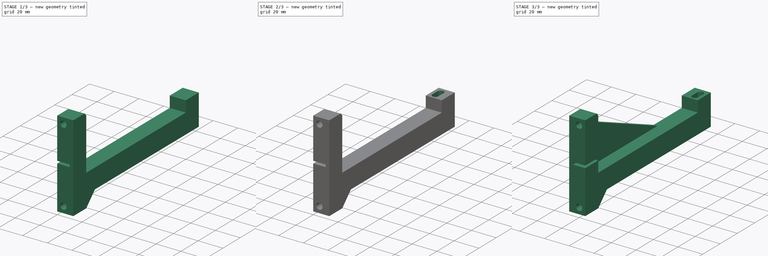
[diagram: build sequence overview — one tinted view per stage of 3, left to right]
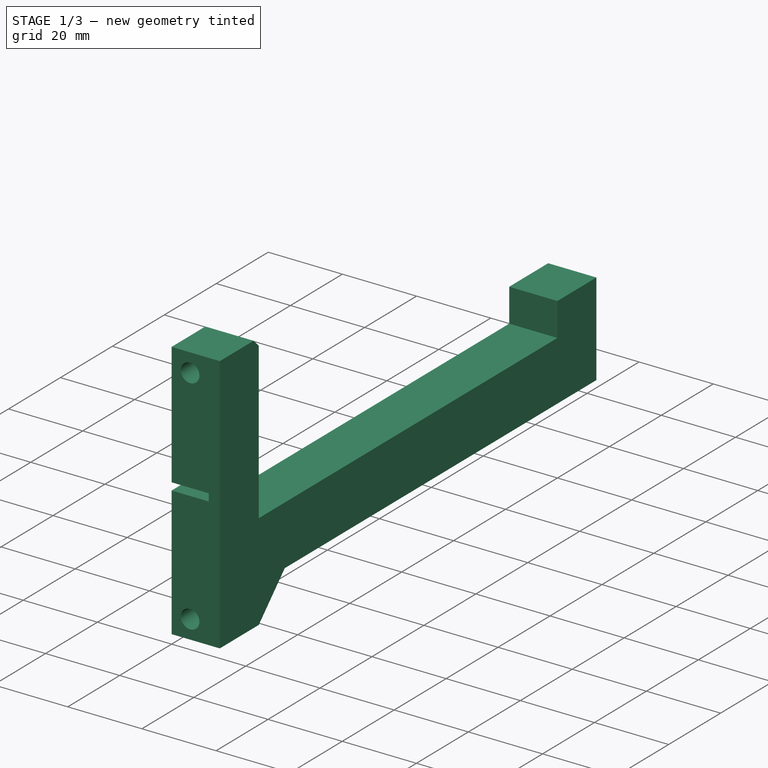
[diagram: stage 1 of 3 — iso view after this stage's code; geometry added in this stage tinted green]
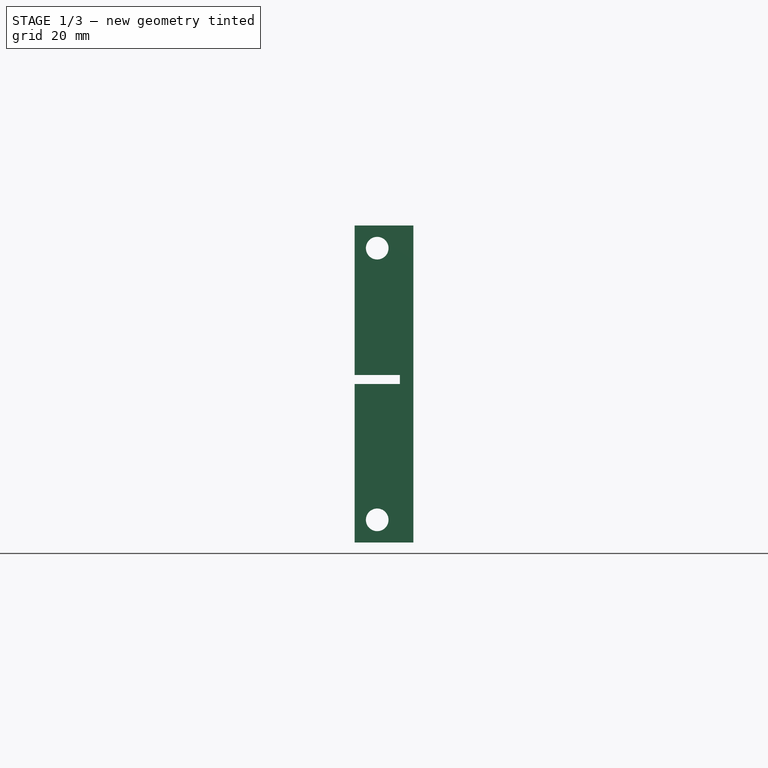
[diagram: stage 1 of 3 — front view after this stage's code; geometry added in this stage tinted green]
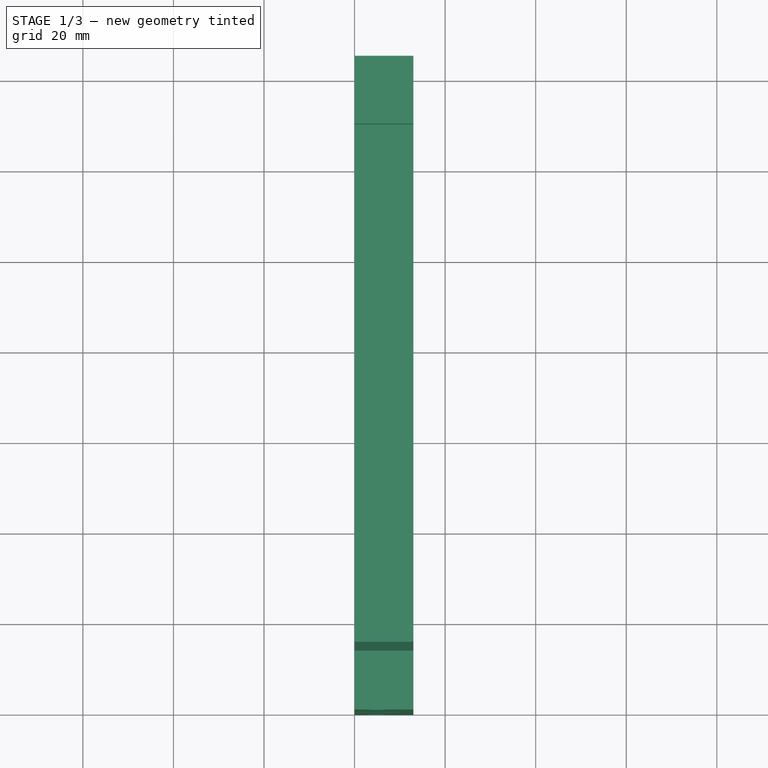
[diagram: stage 1 of 3 — top view after this stage's code; geometry added in this stage tinted green]
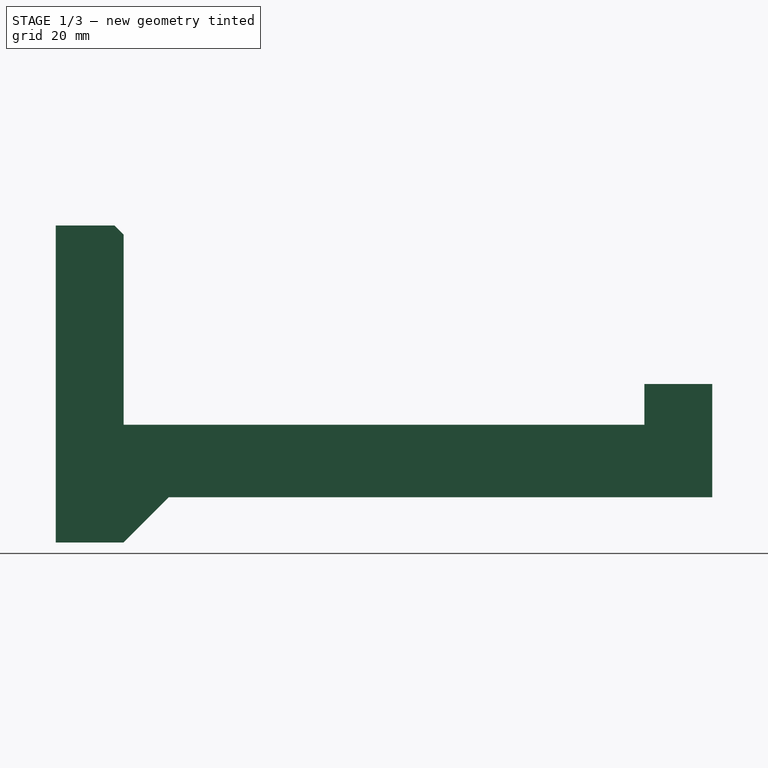
[diagram: stage 1 of 3 — right view after this stage's code; geometry added in this stage tinted green]
FCSTD DOCUMENT  (FreeCAD 0.19R24291 (Git))
Label: ControllerSupportRT
License: All rights reserved
LicenseURL: http://en.wikipedia.org/wiki/All_rights_reserved
objects: Sketcher::SketchObject×6, PartDesign::Pocket×4, PartDesign::Pad×2, PartDesign::Body×2, App::Part×1, PartDesign::FeatureBase×1, Part::Mirroring×1
note: 22 computed .brp shape members not serialized (recipe doc carries the construction recipe); baked Part::Feature solids carry a one-line shape summary decoded from their .brp

FEATURE [Sketcher::SketchObject] Sketch  label="SketchSide"
  FullyConstrained = true
  MapMode = 5
  Placement = pos=(0,0,0) rot=(0.57735,0.57735,0.57735;2.0944rad)
  Support = -> [YZ_Plane001]
  sketch-geometry (12):
    g0: LineSegment StartX=0 StartY=35 StartZ=0 EndX=0 EndY=-35 EndZ=0
    g1: LineSegment StartX=0 StartY=-35 StartZ=0 EndX=15 EndY=-35 EndZ=0
    g2: LineSegment StartX=15 StartY=-35 StartZ=0 EndX=25 EndY=-25 EndZ=0
    g3: LineSegment StartX=25 StartY=-25 StartZ=0 EndX=145 EndY=-25 EndZ=0
    g4: LineSegment StartX=145 StartY=-25 StartZ=0 EndX=145 EndY=0 EndZ=0
    g5: LineSegment StartX=145 StartY=0 StartZ=0 EndX=130 EndY=0 EndZ=0
    g6: LineSegment StartX=130 StartY=0 StartZ=0 EndX=130 EndY=-9 EndZ=0
    g7: LineSegment StartX=130 StartY=-9 StartZ=0 EndX=15 EndY=-9 EndZ=0
    g8: LineSegment StartX=15 StartY=-9 StartZ=0 EndX=15 EndY=0 EndZ=0
    g9: LineSegment StartX=15 StartY=0 StartZ=0 EndX=15 EndY=33 EndZ=0
    g10: LineSegment StartX=0 StartY=35 StartZ=0 EndX=13 EndY=35 EndZ=0
    g11: LineSegment StartX=13 StartY=35 StartZ=0 EndX=15 EndY=33 EndZ=0
  constraints (35):
    c: PointOnObject(g0,g-2)
    c: Coincident(g0,g1)
    c: Horizontal(g1)
    c: Coincident(g1,g2)
    c: Coincident(g2,g3)
    c: Horizontal(g3)
    c: Coincident(g3,g4)
    c: Vertical(g4)
    c: Coincident(g4,g5)
    c: PointOnObject(g5,g-1)
    c: Horizontal(g5)
    c: Coincident(g5,g6)
    c: Vertical(g6)
    c: Coincident(g6,g7)
    c: Horizontal(g7)
    c: Coincident(g7,g8)
    c: PointOnObject(g8,g-1)
    c: Vertical(g8)
    c: Coincident(g8,g9)
    c: Vertical(g9)
    c: Symmetric(g0,g0,g-1)
    c: DistanceY(g0,g0) = 70
    c: DistanceX(g1,g1) = 15
    c: DistanceY(g8,g8) = 9
    c: DistanceX(g-1,g6) = 130
    c: DistanceX(g-1,g3) = 145
    c: Vertical(g9,g1)
    c: Angle(g2) = 0.785398
    c: DistanceY(g2,g-1) = 25
    c: Coincident(g0,g10)
    c: Horizontal(g10)
    c: Coincident(g10,g11)
    c: Angle(g11) = -0.785398
    c: Coincident(g9,g11)
    c: DistanceY(g-1,g9) = 33
FEATURE [PartDesign::Pad] Pad  label="PadBody"
  Direction = (1,1,1)
  Length = 13
  Length2 = 100
  Placement = pos=(0,0,0) rot=(0.57735,0.57735,0.57735;2.0944rad)
  Profile = -> Sketch
  Type = 0
FEATURE [Sketcher::SketchObject] Sketch001
  FullyConstrained = true
  MapMode = 5
  Placement = pos=(0,0,0) rot=(1,0,0;1.5708rad)
  Support = -> [XZ_Plane001]
  sketch-geometry (4):
    g0: LineSegment StartX=0 StartY=0 StartZ=0 EndX=10 EndY=0 EndZ=0
    g1: LineSegment StartX=10 StartY=0 StartZ=0 EndX=10 EndY=2 EndZ=0
    g2: LineSegment StartX=10 StartY=2 StartZ=0 EndX=0 EndY=2 EndZ=0
    g3: LineSegment StartX=0 StartY=2 StartZ=0 EndX=0 EndY=0 EndZ=0
  constraints (11):
    c: Coincident(g0,g1)
    c: Coincident(g1,g2)
    c: Coincident(g2,g3)
    c: Coincident(g3,g0)
    c: Horizontal(g0)
    c: Horizontal(g2)
    c: Vertical(g1)
    c: Vertical(g3)
    c: Coincident(g0,g-1)
    c: DistanceX(g2,g2) = 10
    c: DistanceY(g1,g1) = 2
FEATURE [PartDesign::Pocket] Pocket  label="PocketPCBSlot"
  BaseFeature = -> Pad
  Length = 5
  Length2 = 100
  Placement = pos=(0,0,0) rot=(0.57735,0.57735,0.57735;2.0944rad)
  Profile = -> Sketch001
  Type = 1
FEATURE [Sketcher::SketchObject] Sketch002
  FullyConstrained = true
  MapMode = 5
  Placement = pos=(0,0,0) rot=(1,0,0;1.5708rad)
  Support = -> [XZ_Plane001]
  sketch-geometry (2):
    g0: Circle CenterX=5 CenterY=30 CenterZ=0 NormalX=0 NormalY=0 NormalZ=1 AngleXU=0 Radius=2.5
    g1: Circle CenterX=5 CenterY=-30 CenterZ=0 NormalX=0 NormalY=0 NormalZ=1 AngleXU=0 Radius=2.5
  constraints (5):
    c: DistanceX(g-1,g0) = 5
    c: Diameter(g0) = 5
    c: Equal(g0,g1)
    c: Symmetric(g1,g0,g-1)
    c: DistanceY(g1,g0) = 60
FEATURE [PartDesign::Pocket] Pocket001  label="PocketFaceHoles"
  BaseFeature = -> Pocket
  Length = 5
  Length2 = 100
  Placement = pos=(0,0,0) rot=(0.57735,0.57735,0.57735;2.0944rad)
  Profile = -> Sketch002
  Type = 1
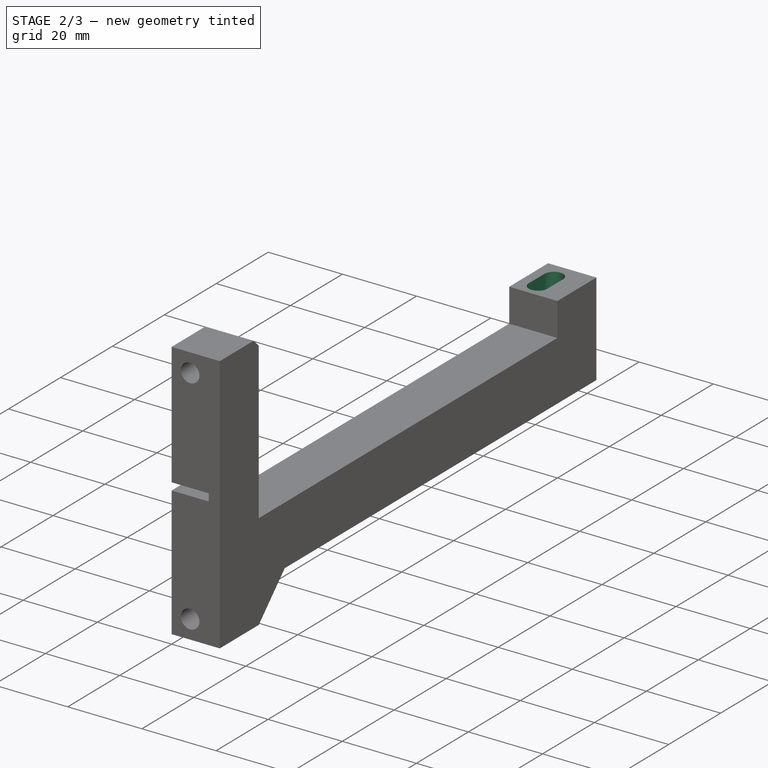
[diagram: stage 2 of 3 — iso view after this stage's code; geometry added in this stage tinted green]
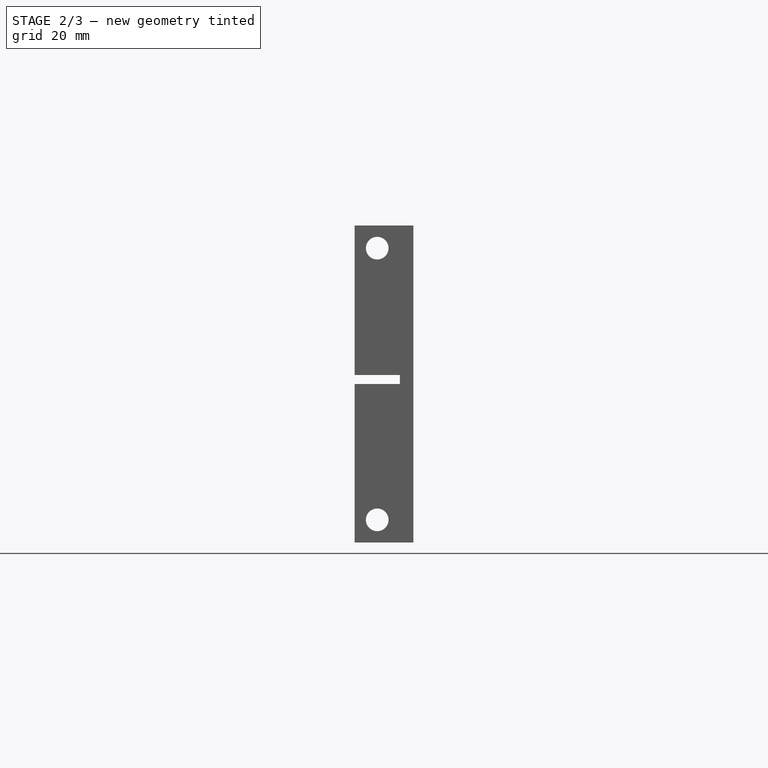
[diagram: stage 2 of 3 — front view after this stage's code; geometry added in this stage tinted green]
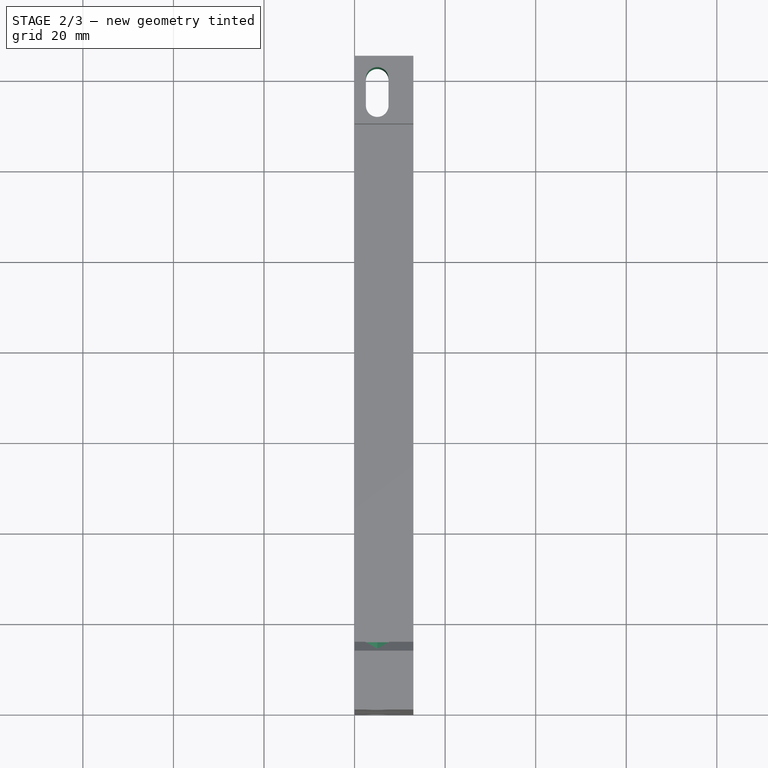
[diagram: stage 2 of 3 — top view after this stage's code; geometry added in this stage tinted green]
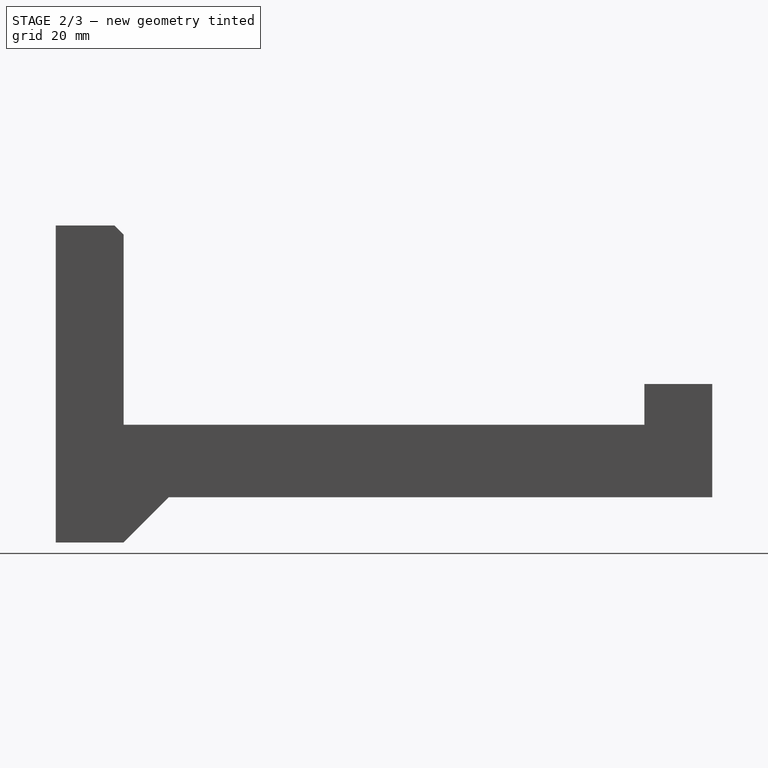
[diagram: stage 2 of 3 — right view after this stage's code; geometry added in this stage tinted green]
FEATURE [Sketcher::SketchObject] Sketch003
  AttachmentOffset = pos=(0,0,-12) rot=(0,0,1;0rad)
  FullyConstrained = true
  MapMode = 5
  Placement = pos=(4e-15,12,-1.3e-15) rot=(-0.57735,-0.57735,0.57735;4.18879rad)
  Support = -> [Pocket001]
  sketch-geometry (14):
    g0: LineSegment StartX=-27.7195 StartY=8.95 StartZ=0 EndX=-32.2805 EndY=8.95 EndZ=0
    g1: LineSegment StartX=-32.2805 StartY=8.95 StartZ=0 EndX=-34.5611 EndY=5 EndZ=0
    g2: LineSegment StartX=-34.5611 StartY=5 StartZ=0 EndX=-32.2805 EndY=1.05 EndZ=0
    g3: LineSegment StartX=-32.2805 StartY=1.05 StartZ=0 EndX=-27.7195 EndY=1.05 EndZ=0
    g4: LineSegment StartX=-27.7195 StartY=1.05 StartZ=0 EndX=-25.4389 EndY=5 EndZ=0
    g5: LineSegment StartX=-25.4389 StartY=5 StartZ=0 EndX=-27.7195 EndY=8.95 EndZ=0
    g6: Circle CenterX=-30 CenterY=5 CenterZ=0 NormalX=0 NormalY=0 NormalZ=1 AngleXU=0 Radius=4.56107
    g7: LineSegment StartX=32.2805 StartY=8.95 StartZ=0 EndX=27.7195 EndY=8.95 EndZ=0
    g8: LineSegment StartX=27.7195 StartY=8.95 StartZ=0 EndX=25.4389 EndY=5 EndZ=0
    g9: LineSegment StartX=25.4389 StartY=5 StartZ=0 EndX=27.7195 EndY=1.05 EndZ=0
    g10: LineSegment StartX=27.7195 StartY=1.05 StartZ=0 EndX=32.2805 EndY=1.05 EndZ=0
    g11: LineSegment StartX=32.2805 StartY=1.05 StartZ=0 EndX=34.5611 EndY=5 EndZ=0
    g12: LineSegment StartX=34.5611 StartY=5 StartZ=0 EndX=32.2805 EndY=8.95 EndZ=0
    g13: Circle CenterX=30 CenterY=5 CenterZ=0 NormalX=0 NormalY=0 NormalZ=1 AngleXU=0 Radius=4.56107
  constraints (33):
    c: Coincident(g0,g1)
    c: Coincident(g1,g2)
    c: Coincident(g2,g3)
    c: Coincident(g3,g4)
    c: Coincident(g4,g5)
    c: Coincident(g5,g0)
    c: Equal(g0, g1-g5) x5
    c: PointOnObject(g0,g6)
    c: PointOnObject(g1,g6)
    c: PointOnObject(g2,g6)
    c: PointOnObject(g3,g6)
    c: PointOnObject(g4,g6)
    c: PointOnObject(g5,g6)
    c: Coincident(g7,g8)
    c: Coincident(g8,g9)
    c: Coincident(g9,g10)
    c: Coincident(g10,g11)
    c: Coincident(g11,g12)
    c: Coincident(g12,g7)
    c: Equal(g7, g8-g12) x5
    c: PointOnObject(g7,g13)
    c: PointOnObject(g8,g13)
    c: PointOnObject(g9,g13)
    c: PointOnObject(g10,g13)
    c: PointOnObject(g11,g13)
    c: PointOnObject(g12,g13)
    c: Equal(g6,g13)
    c: Symmetric(g6,g13,g-2)
    c: Horizontal(g3)
    c: Horizontal(g10)
    c: Distance(g1,g0) = 7.9
    c: DistanceX(g6,g13) = 60
    c: DistanceY(g-1,g6) = 5
FEATURE [PartDesign::Pocket] Pocket002  label="PocketHex5mm"
  BaseFeature = -> Pocket001
  Length = 0
  Length2 = 12
  Offset = 10
  Placement = pos=(0,0,0) rot=(0.57735,0.57735,0.57735;2.0944rad)
  Profile = -> Sketch003
  Type = 2
FEATURE [Sketcher::SketchObject] Sketch004
  FullyConstrained = true
  MapMode = 5
  Placement = pos=(0,0,2.36e-14) rot=(0,0,-1;1.5708rad)
  Support = -> [Pocket002]
  sketch-geometry (5):
    g0: ArcOfCircle CenterX=-140 CenterY=5 CenterZ=0 NormalX=0 NormalY=0 NormalZ=1 AngleXU=0 Radius=2.5 StartAngle=1.5708 EndAngle=4.71239
    g1: ArcOfCircle CenterX=-134 CenterY=5 CenterZ=0 NormalX=0 NormalY=0 NormalZ=1 AngleXU=0 Radius=2.5 StartAngle=4.71239 EndAngle=7.85398
    g2: LineSegment StartX=-140 StartY=2.5 StartZ=0 EndX=-134 EndY=2.5 EndZ=0
    g3: LineSegment StartX=-140 StartY=7.5 StartZ=0 EndX=-134 EndY=7.5 EndZ=0
    g4: GeomPoint X=-137 Y=5 Z=0
  constraints (11):
    c: Tangent(g0,g3) = 1.5708
    c: Tangent(g0,g2) = -1.5708
    c: Tangent(g2,g1) = -1.5708
    c: Tangent(g3,g1) = 1.5708
    c: Horizontal(g2)
    c: Equal(g0,g1)
    c: DistanceY(g0,g0) = 5
    c: DistanceY(g-1,g1) = 5
    c: DistanceX(g0,g1) = 6
    c: Symmetric(g0,g1,g4)
    c: DistanceX(g4,g-1) = 137
FEATURE [PartDesign::Pocket] Pocket003  label="PocketFarHole"
  BaseFeature = -> Pocket002
  Length = 5
  Length2 = 100
  Placement = pos=(0,0,0) rot=(0.57735,0.57735,0.57735;2.0944rad)
  Profile = -> Sketch004
  Refine = true
  Type = 1
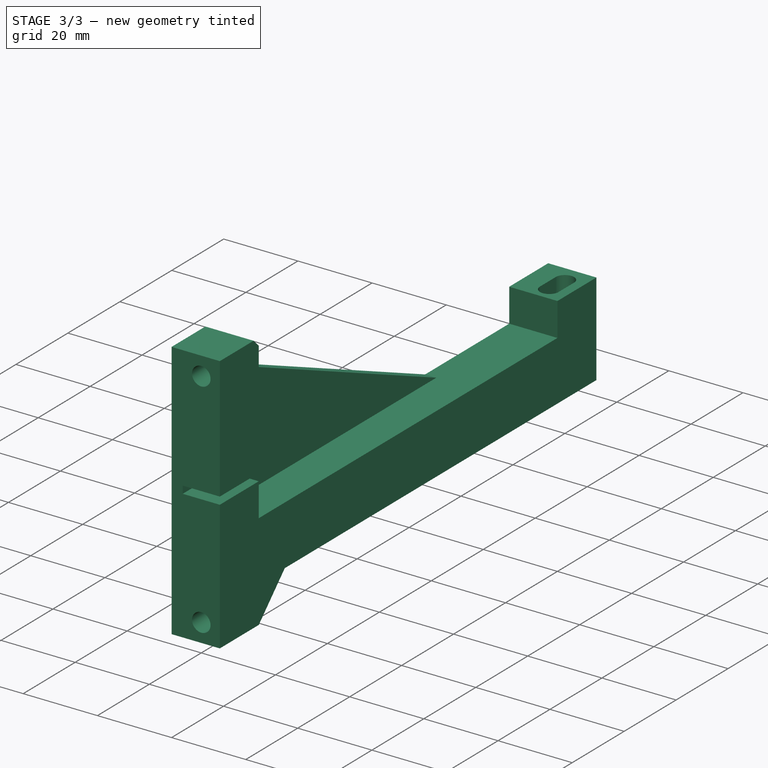
[diagram: stage 3 of 3 — iso view after this stage's code; geometry added in this stage tinted green]
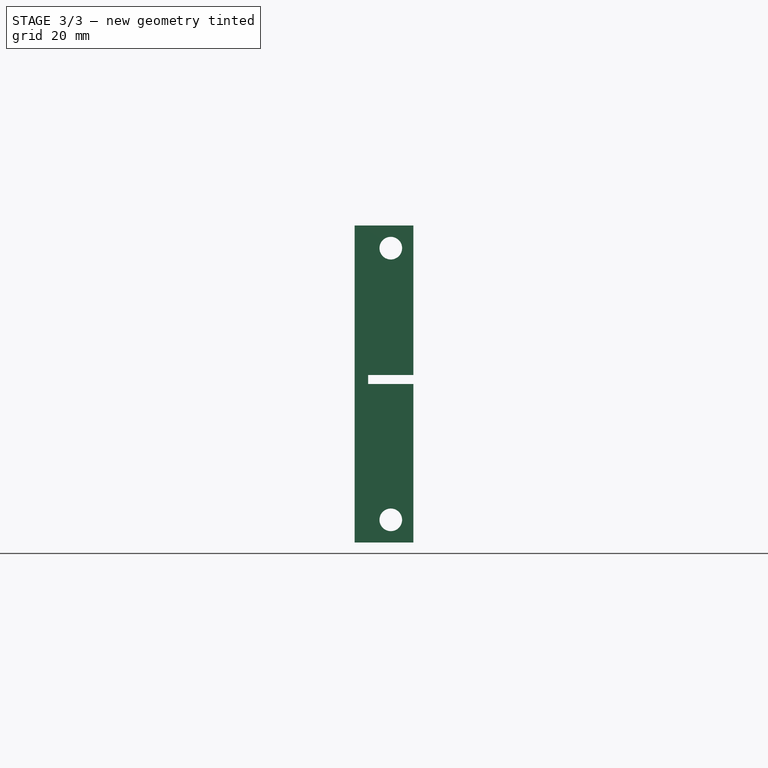
[diagram: stage 3 of 3 — front view after this stage's code; geometry added in this stage tinted green]
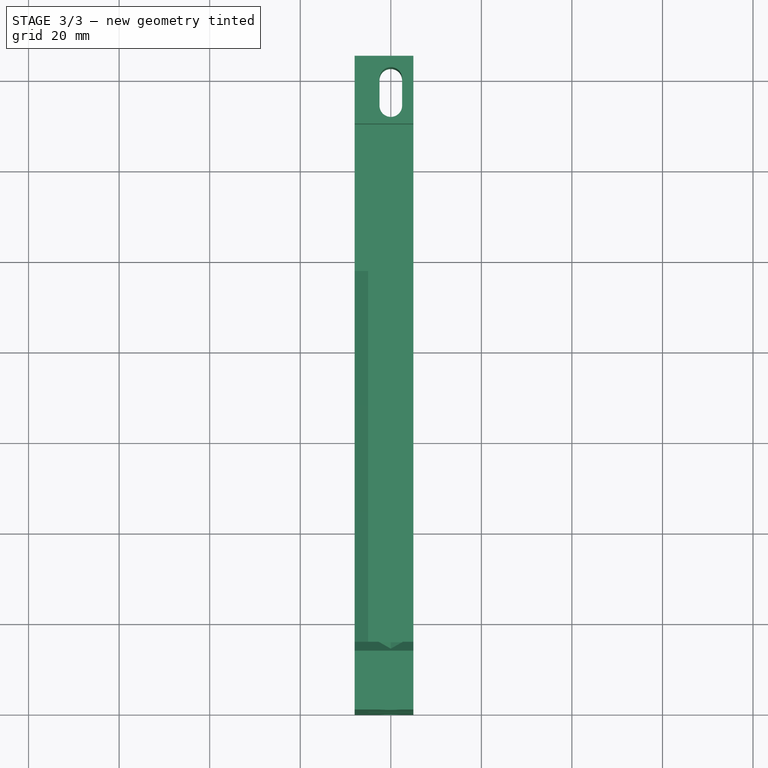
[diagram: stage 3 of 3 — top view after this stage's code; geometry added in this stage tinted green]
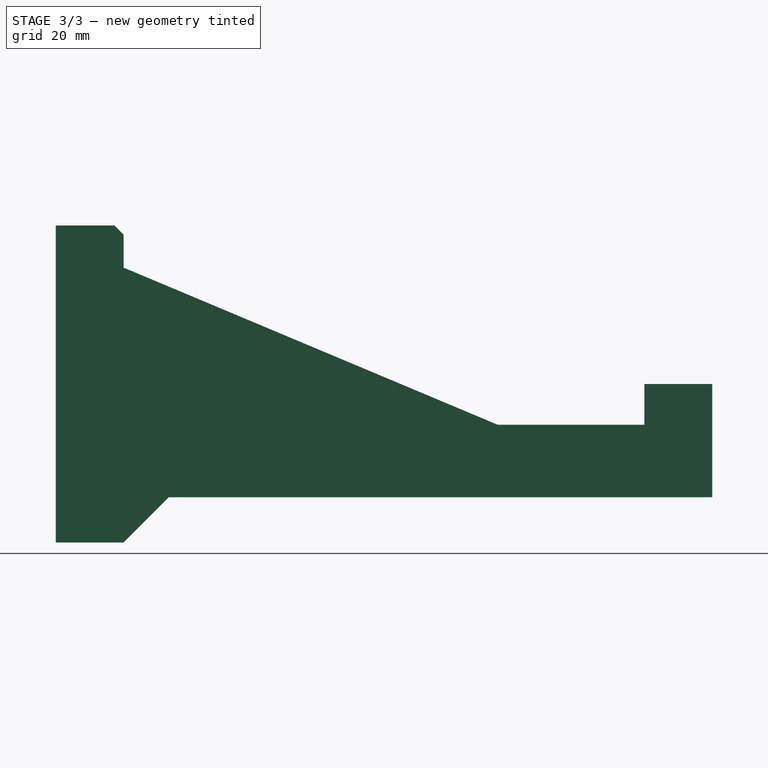
[diagram: stage 3 of 3 — right view after this stage's code; geometry added in this stage tinted green]
FEATURE [Sketcher::SketchObject] Sketch005
  AttachmentOffset = pos=(0,0,13) rot=(0,0,1;0rad)
  FullyConstrained = true
  MapMode = 5
  Placement = pos=(13,-2.9e-15,2.9e-15) rot=(0.57735,0.57735,0.57735;2.0944rad)
  Support = -> [YZ_Plane001]
  sketch-geometry (3):
    g0: LineSegment StartX=0 StartY=32 StartZ=0 EndX=0 EndY=-10 EndZ=0
    g1: LineSegment StartX=0 StartY=-10 StartZ=0 EndX=100 EndY=-10 EndZ=0
    g2: LineSegment StartX=100 StartY=-10 StartZ=0 EndX=0 EndY=32 EndZ=0
  constraints (9):
    c: PointOnObject(g0,g-2)
    c: PointOnObject(g0,g-2)
    c: Coincident(g0,g1)
    c: Horizontal(g1)
    c: Coincident(g1,g2)
    c: Coincident(g2,g0)
    c: DistanceY(g0,g0) = 42
    c: DistanceX(g1,g1) = 100
    c: DistanceY(g0,g-1) = 10
FEATURE [PartDesign::Pad] Pad001  label="PadGusset"
  BaseFeature = -> Pocket003
  Direction = (1,1,1)
  Length = 3
  Length2 = 100
  Placement = pos=(0,0,0) rot=(0.57735,0.57735,0.57735;2.0944rad)
  Profile = -> Sketch005
  Refine = true
  Reversed = true
  Type = 0
FEATURE [PartDesign::Body] Body  label="BodySupportRT"
  Group = -> [Sketch,Pad,Sketch001,Pocket,Sketch002,Pocket001,Sketch003,Pocket002,Sketch004,Pocket003,Sketch005,Pad001]
  Origin = -> Origin001
  Tip = -> Pad001
FEATURE [App::Part] Part
  Group = -> [Body]
  Origin = -> Origin
FEATURE [PartDesign::FeatureBase] Clone
  BaseFeature = -> Body
FEATURE [Part::Mirroring] Part__Mirroring  label="CloneBodySupportLR"
  Base = (0,0,0)
  Normal = (1,0,0)
  Placement = pos=(-175,0,0) rot=(0,0,1;0rad)
  Source = -> Clone
FEATURE [PartDesign::Body] Body001
  Group = -> [Clone]
  Origin = -> Origin002
  Placement = pos=(-73,0,0) rot=(0,0,1;0rad)
  Tip = -> Clone
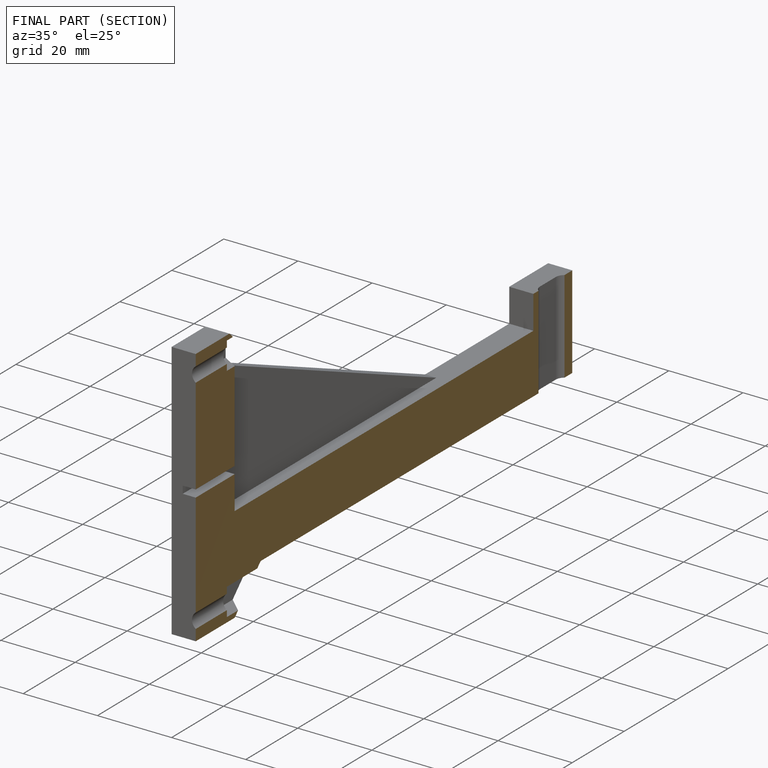
[diagram: finished part — half-section view (interior)]
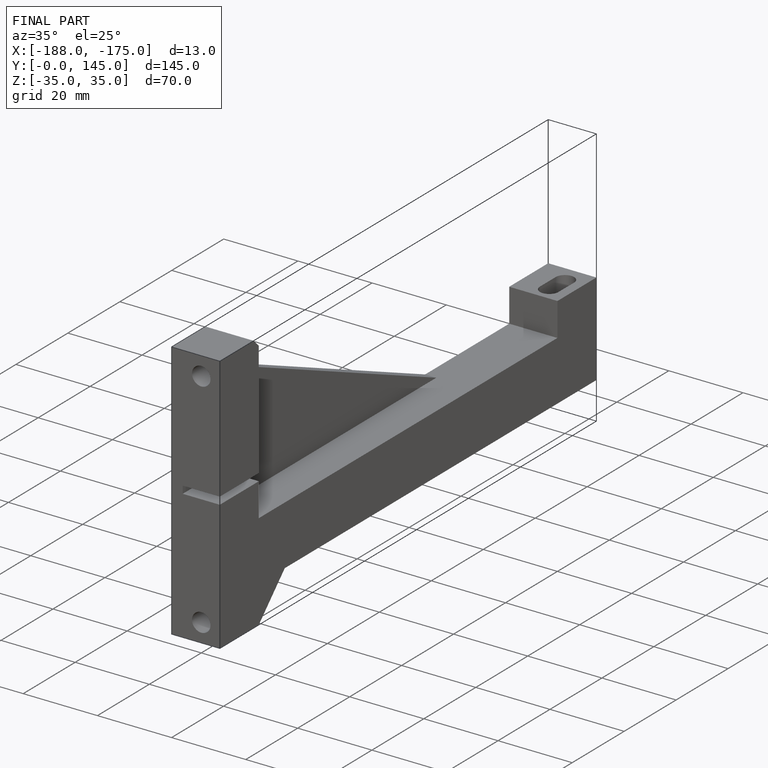
[diagram: finished part — iso view with bounding-box wireframe]
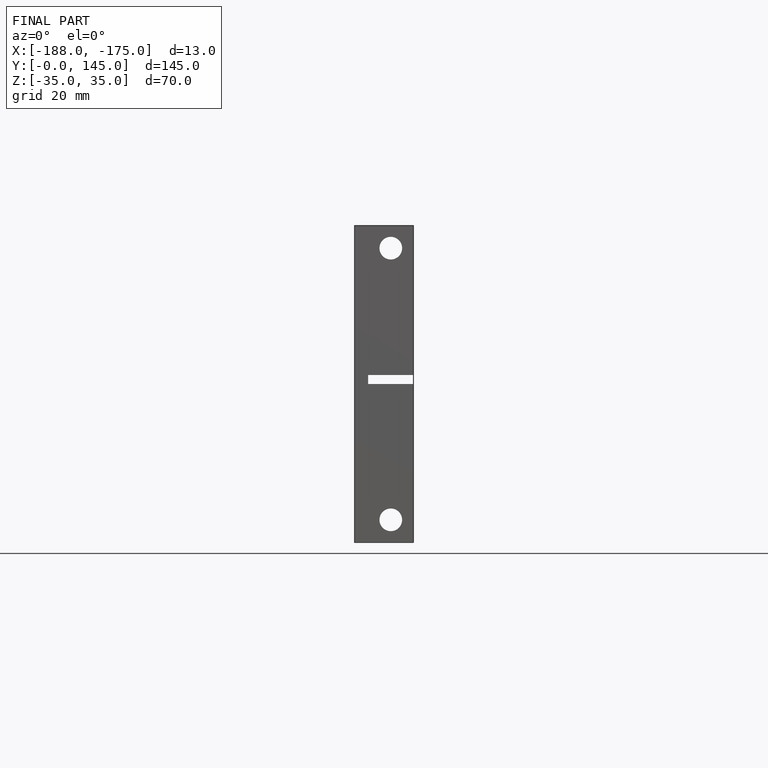
[diagram: finished part — front view with bounding-box wireframe]
